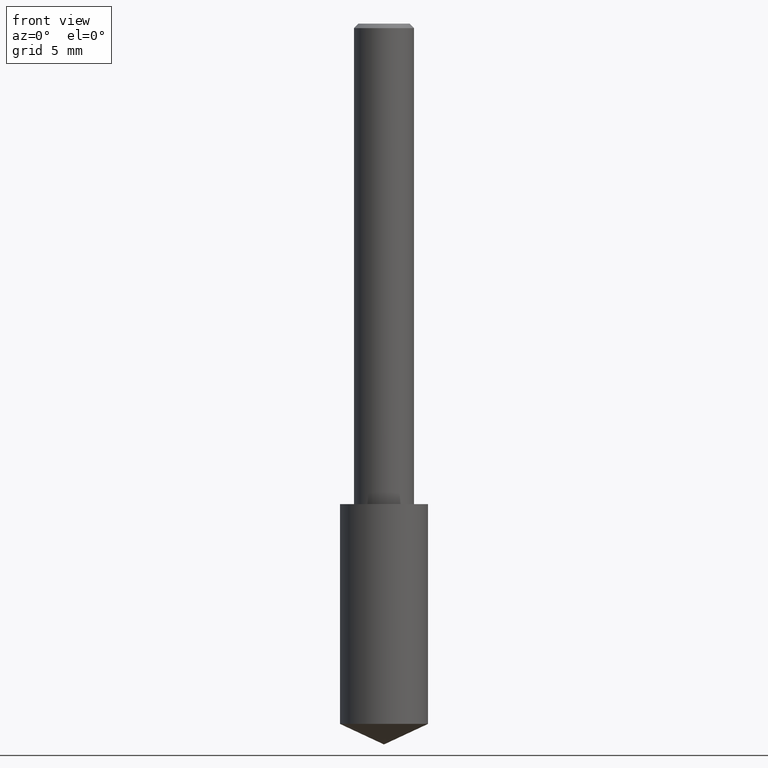
[diagram: clean part render]
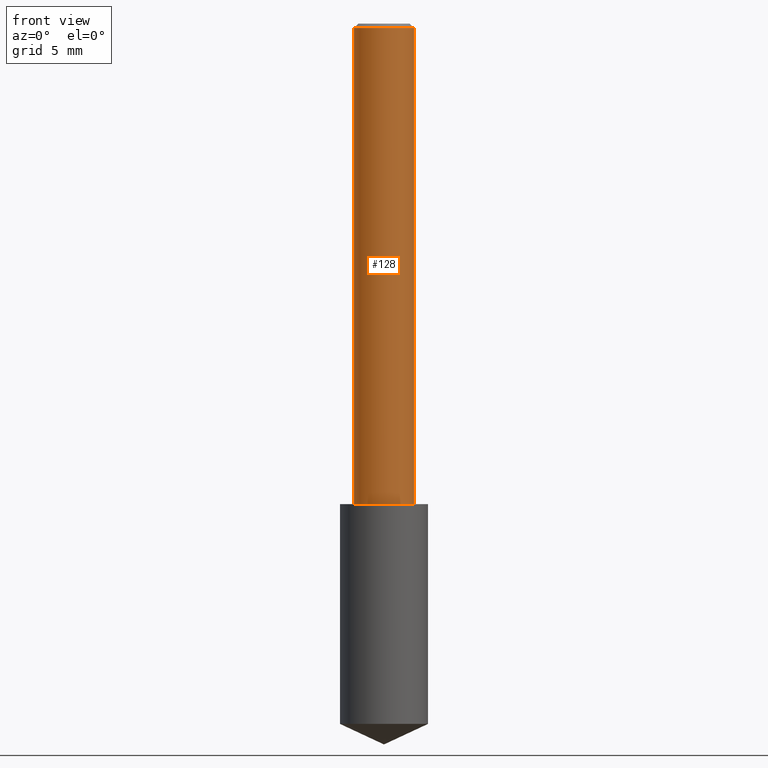
[diagram: same view with one face highlighted and labeled with its STEP entity id]
A machine part, front view. The second image highlights one B-rep face of the part: STEP entity #128.
In plain terms, the highlighted cylindrical surface (edge-blend (fillet) strip) has radius 1.5875 mm, axis along (-0, 0, 1).
Its self-contained STEP definition (entity closure, byte-faithful):
#20 = CARTESIAN_POINT ( 'NONE',  ( -0.06250000000000006939, 4.440892098500631092E-16, -3.074334431409319267E-30 ) ) ;
#33 = CARTESIAN_POINT ( 'NONE',  ( 0.000000000000000000, 0.000000000000000000, 0.000000000000000000 ) ) ;
#39 = EDGE_CURVE ( 'NONE', #239, #74, #131, .T. ) ;
#46 = DIRECTION ( 'NONE',  ( -2.445468806185136597E-29, 3.491481338843145583E-15, 1.000000000000000000 ) ) ;
#53 = VERTEX_POINT ( 'NONE', #203 ) ;
#59 = DIRECTION ( 'NONE',  ( -2.445468806185136877E-29, 3.491481338843145188E-15, 1.000000000000000000 ) ) ;
#60 = AXIS2_PLACEMENT_3D ( 'NONE', #116, #221, #199 ) ;
#65 = CARTESIAN_POINT ( 'NONE',  ( -0.06250000000000000000, -1.318017778347336672E-15, -0.009375000000000060368 ) ) ;
#74 = VERTEX_POINT ( 'NONE', #176 ) ;
#98 = VECTOR ( 'NONE', #248, 39.37007874015748143 ) ;
#112 = FACE_OUTER_BOUND ( 'NONE', #308, .T. ) ;
#114 = DIRECTION ( 'NONE',  ( -2.445468806185136597E-29, 3.491481338843145583E-15, 1.000000000000000000 ) ) ;
#116 = CARTESIAN_POINT ( 'NONE',  ( 2.445468806185137438E-29, -3.491481338843146371E-15, -1.000000000000000222 ) ) ;
#128 = ADVANCED_FACE ( 'NONE', ( #112 ), #298, .T. ) ;
#131 = CIRCLE ( 'NONE', #249, 0.06250000000000000000 ) ;
#149 = ORIENTED_EDGE ( 'NONE', *, *, #268, .F. ) ;
#159 = DIRECTION ( 'NONE',  ( 1.000000000000000000, -6.982962677686266711E-15, 0.000000000000000000 ) ) ;
#170 = ORIENTED_EDGE ( 'NONE', *, *, #334, .T. ) ;
#172 = VECTOR ( 'NONE', #59, 39.37007874015748143 ) ;
#176 = CARTESIAN_POINT ( 'NONE',  ( 0.06250000000000000000, -4.691678049070463404E-16, -0.009375000000000060368 ) ) ;
#178 = ORIENTED_EDGE ( 'NONE', *, *, #223, .T. ) ;
#179 = LINE ( 'NONE', #287, #172 ) ;
#186 = VERTEX_POINT ( 'NONE', #201 ) ;
#199 = DIRECTION ( 'NONE',  ( 1.000000000000000000, -6.982962677686264344E-15, 0.000000000000000000 ) ) ;
#200 = DIRECTION ( 'NONE',  ( 1.000000000000000000, -6.982962677686266711E-15, 4.876176775795935793E-29 ) ) ;
#201 = CARTESIAN_POINT ( 'NONE',  ( -0.06250000000000012490, -1.318017778347335489E-15, -1.000000000000000222 ) ) ;
#203 = CARTESIAN_POINT ( 'NONE',  ( 0.06250000000000012490, -3.927916506198539224E-15, -1.000000000000000222 ) ) ;
#205 = CIRCLE ( 'NONE', #60, 0.06250000000000012490 ) ;
#221 = DIRECTION ( 'NONE',  ( -2.445468806185136597E-29, 3.491481338843145583E-15, 1.000000000000000000 ) ) ;
#223 = EDGE_CURVE ( 'NONE', #186, #53, #205, .T. ) ;
#239 = VERTEX_POINT ( 'NONE', #65 ) ;
#248 = DIRECTION ( 'NONE',  ( -2.445468806185136877E-29, 3.491481338843145188E-15, 1.000000000000000000 ) ) ;
#249 = AXIS2_PLACEMENT_3D ( 'NONE', #250, #46, #159 ) ;
#250 = CARTESIAN_POINT ( 'NONE',  ( 2.292627005798580623E-31, -3.273263755165470184E-17, -0.009375000000000060368 ) ) ;
#254 = ORIENTED_EDGE ( 'NONE', *, *, #39, .F. ) ;
#268 = EDGE_CURVE ( 'NONE', #186, #239, #281, .T. ) ;
#281 = LINE ( 'NONE', #20, #98 ) ;
#287 = CARTESIAN_POINT ( 'NONE',  ( 0.06250000000000006939, -4.364351673553921624E-16, 3.047610484872463374E-30 ) ) ;
#298 = CYLINDRICAL_SURFACE ( 'NONE', #319, 0.06250000000000006939 ) ;
#308 = EDGE_LOOP ( 'NONE', ( #149, #178, #170, #254 ) ) ;
#319 = AXIS2_PLACEMENT_3D ( 'NONE', #33, #114, #200 ) ;
#334 = EDGE_CURVE ( 'NONE', #53, #74, #179, .T. ) ;